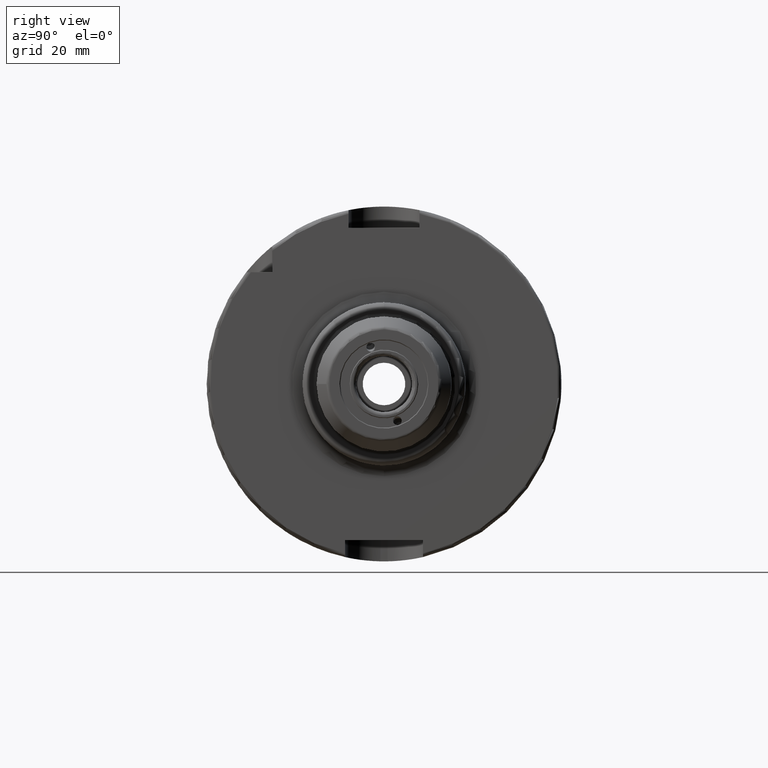
[diagram: clean part render]
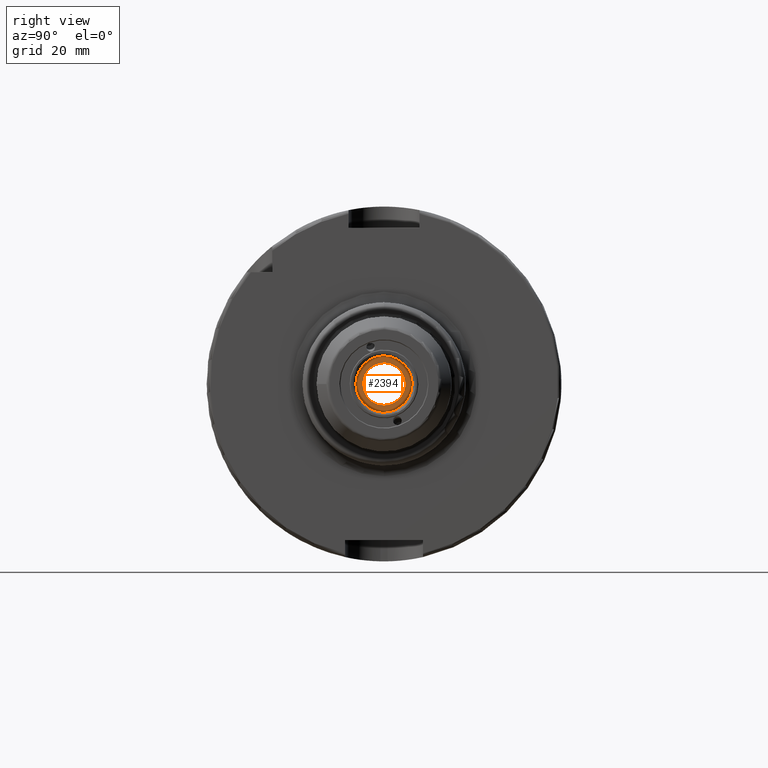
[diagram: same view with one face highlighted and labeled with its STEP entity id]
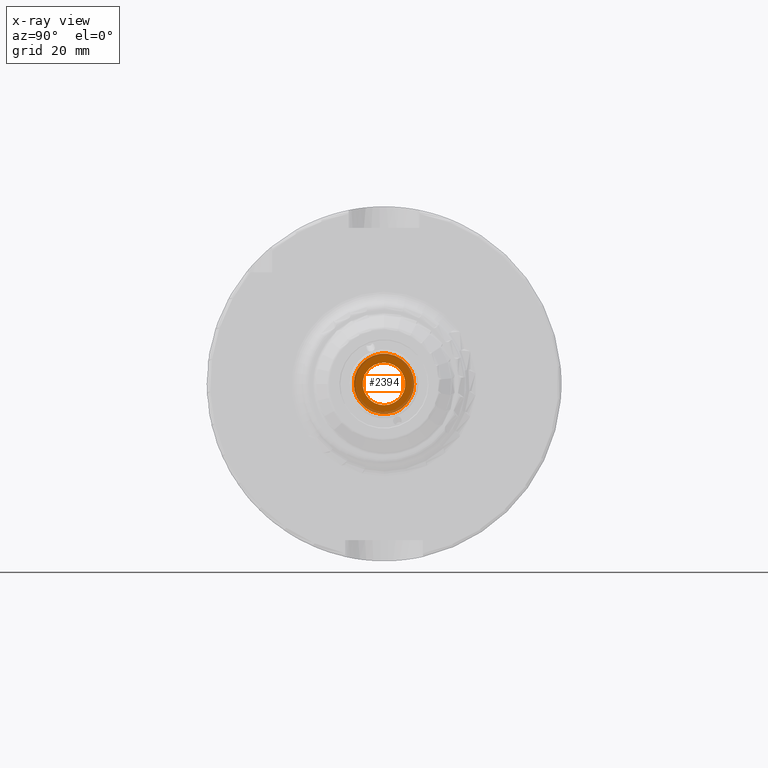
[diagram: x-ray of the same camera — body ghosted, the highlighted face saturated]
A machine part, right view. The second image highlights one B-rep face of the part: STEP entity #2394.
The next image is the same camera in x-ray: the body ghosted, the highlighted face saturated — about 27% of this face is hidden behind the body in this view.
In plain terms, the highlighted planar face has unit normal (1, 0, 0).
Its self-contained STEP definition (entity closure, byte-faithful):
#73=FACE_BOUND('',#487,.T.);
#91=PLANE('',#2603);
#168=CIRCLE('',#2598,6.);
#170=CIRCLE('',#2602,8.5375);
#334=FACE_OUTER_BOUND('',#486,.T.);
#486=EDGE_LOOP('',(#1743));
#487=EDGE_LOOP('',(#1744));
#1002=VERTEX_POINT('',#4006);
#1004=VERTEX_POINT('',#4013);
#1278=EDGE_CURVE('',#1002,#1002,#168,.T.);
#1281=EDGE_CURVE('',#1004,#1004,#170,.T.);
#1743=ORIENTED_EDGE('',*,*,#1281,.T.);
#1744=ORIENTED_EDGE('',*,*,#1278,.T.);
#2394=ADVANCED_FACE('',(#334,#73),#91,.T.);
#2598=AXIS2_PLACEMENT_3D('',#4008,#3004,#3005);
#2602=AXIS2_PLACEMENT_3D('',#4015,#3013,#3014);
#2603=AXIS2_PLACEMENT_3D('',#4016,#3015,#3016);
#3004=DIRECTION('center_axis',(-1.,0.,0.));
#3005=DIRECTION('ref_axis',(0.,-1.06221930374718E-16,1.));
#3013=DIRECTION('center_axis',(1.,0.,0.));
#3014=DIRECTION('ref_axis',(0.,0.,-1.));
#3015=DIRECTION('center_axis',(1.,0.,0.));
#3016=DIRECTION('ref_axis',(0.,0.,-1.));
#4006=CARTESIAN_POINT('',(36.,-9.74564972401046E-17,-6.));
#4008=CARTESIAN_POINT('Origin',(36.,0.,0.));
#4013=CARTESIAN_POINT('',(36.,-8.5375,-1.04554220477205E-15));
#4015=CARTESIAN_POINT('Origin',(36.,0.,0.));
#4016=CARTESIAN_POINT('Origin',(36.,-5.00208858359947E-16,0.));